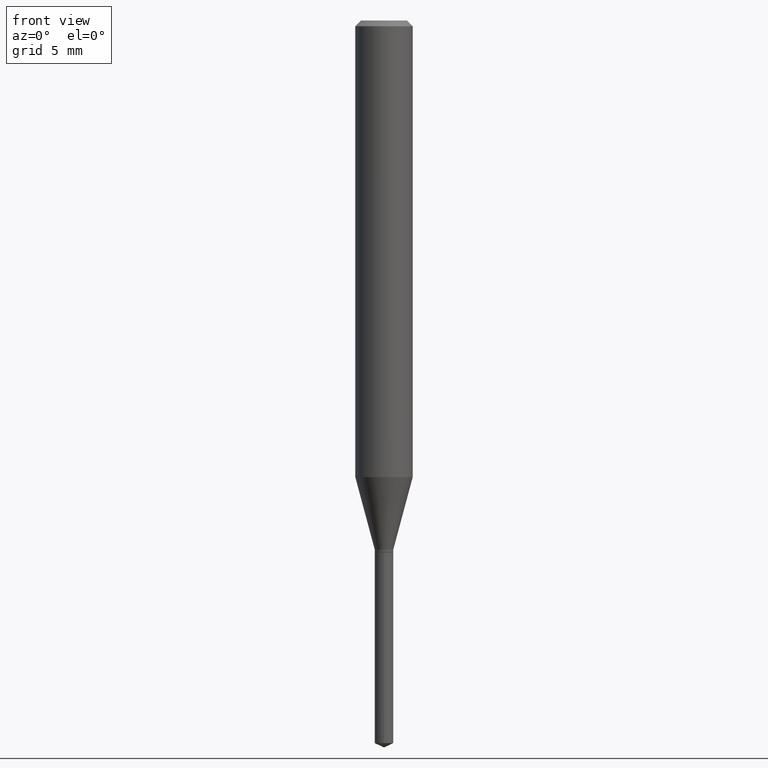
[diagram: clean part render]
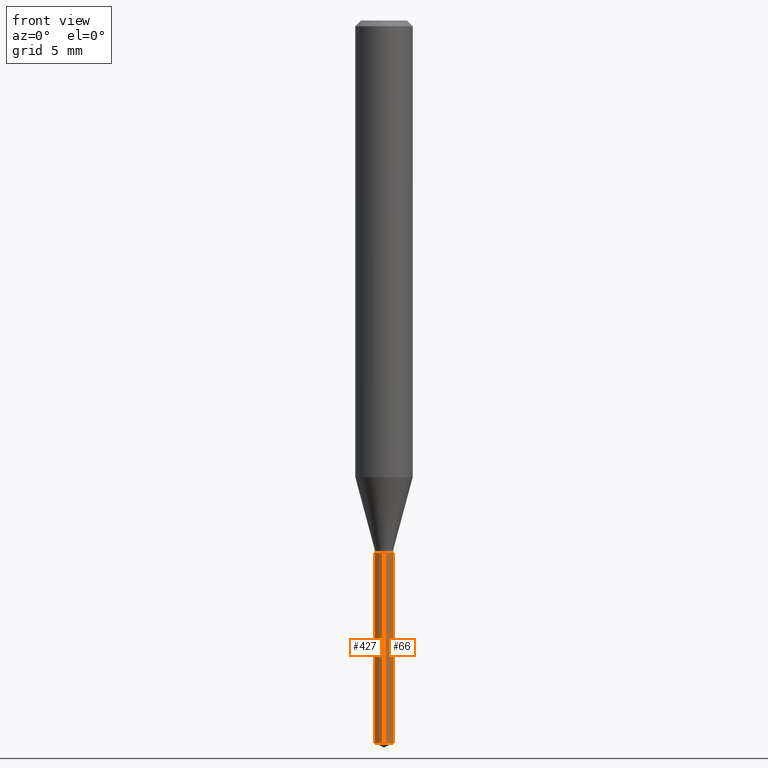
[diagram: same view with one multi-face feature highlighted, each face labeled with its STEP entity id]
A machine part, front view. The highlighted faces form ONE feature: a constant-radius fillet chain: 2 tangent blend faces with common blend radius 0.4851 mm. The faces share edges in the B-rep.
Their STEP definitions:
[1] entity #66 (Cylinder):
#21 = FACE_OUTER_BOUND ( 'NONE', #138, .T. ) ;
#51 = AXIS2_PLACEMENT_3D ( 'NONE', #162, #319, #282 ) ;
#66 = ADVANCED_FACE ( 'NONE', ( #21 ), #128, .T. ) ;
#67 = CARTESIAN_POINT ( 'NONE',  ( -1.333745871437809078E-16, -0.01910000000000382225, -1.094499999999999806 ) ) ;
#73 = EDGE_CURVE ( 'NONE', #410, #262, #165, .T. ) ;
#92 = CIRCLE ( 'NONE', #51, 0.01910000000000000239 ) ;
#95 = DIRECTION ( 'NONE',  ( -2.445470214571802116E-29, 3.491479321953280158E-15, 1.000000000000000000 ) ) ;
#112 = AXIS2_PLACEMENT_3D ( 'NONE', #324, #208, #400 ) ;
#122 = CARTESIAN_POINT ( 'NONE',  ( 1.357136625302058998E-16, 0.01909999999999617906, -1.094499999999999806 ) ) ;
#128 = CYLINDRICAL_SURFACE ( 'NONE', #112, 0.01910000000000000239 ) ;
#138 = EDGE_LOOP ( 'NONE', ( #460, #188, #145, #183 ) ) ;
#145 = ORIENTED_EDGE ( 'NONE', *, *, #444, .F. ) ;
#155 = EDGE_CURVE ( 'NONE', #410, #450, #92, .T. ) ;
#160 = DIRECTION ( 'NONE',  ( -2.445470214571802396E-29, 3.491479321953280158E-15, 1.000000000000000000 ) ) ;
#162 = CARTESIAN_POINT ( 'NONE',  ( 3.636885924104733214E-29, -5.192507643329431697E-15, -1.487193523729239519 ) ) ;
#164 = CIRCLE ( 'NONE', #335, 0.01910000000000000239 ) ;
#165 = LINE ( 'NONE', #245, #340 ) ;
#183 = ORIENTED_EDGE ( 'NONE', *, *, #73, .F. ) ;
#188 = ORIENTED_EDGE ( 'NONE', *, *, #390, .T. ) ;
#208 = DIRECTION ( 'NONE',  ( -2.445470214571802116E-29, 3.491479321953280158E-15, 1.000000000000000000 ) ) ;
#221 = VECTOR ( 'NONE', #286, 39.37007874015748143 ) ;
#241 = CARTESIAN_POINT ( 'NONE',  ( -1.333745871437713182E-16, -0.01910000000000519269, -1.487193523729239519 ) ) ;
#245 = CARTESIAN_POINT ( 'NONE',  ( -1.333745871437809078E-16, -0.01910000000000382225, -1.094499999999999806 ) ) ;
#262 = VERTEX_POINT ( 'NONE', #67 ) ;
#273 = VERTEX_POINT ( 'NONE', #441 ) ;
#282 = DIRECTION ( 'NONE',  ( -6.982962677686265133E-15, -1.000000000000000000, 0.000000000000000000 ) ) ;
#286 = DIRECTION ( 'NONE',  ( -2.445470214571802396E-29, 3.491479321953280158E-15, 1.000000000000000000 ) ) ;
#294 = CARTESIAN_POINT ( 'NONE',  ( 2.676565608369631794E-29, -3.821426325363822773E-15, -1.094499999999999806 ) ) ;
#319 = DIRECTION ( 'NONE',  ( -2.445470214571802116E-29, 3.491479321953280158E-15, 1.000000000000000000 ) ) ;
#324 = CARTESIAN_POINT ( 'NONE',  ( 2.676565608369631794E-29, -3.821426325363822773E-15, -1.094499999999999806 ) ) ;
#335 = AXIS2_PLACEMENT_3D ( 'NONE', #294, #95, #443 ) ;
#340 = VECTOR ( 'NONE', #160, 39.37007874015748143 ) ;
#386 = LINE ( 'NONE', #122, #221 ) ;
#390 = EDGE_CURVE ( 'NONE', #450, #273, #386, .T. ) ;
#400 = DIRECTION ( 'NONE',  ( -6.982962677686265133E-15, -1.000000000000000000, 0.000000000000000000 ) ) ;
#410 = VERTEX_POINT ( 'NONE', #241 ) ;
#441 = CARTESIAN_POINT ( 'NONE',  ( 1.357136625302155634E-16, 0.01909999999999617906, -1.094499999999999806 ) ) ;
#443 = DIRECTION ( 'NONE',  ( -6.982962677686265133E-15, -1.000000000000000000, 0.000000000000000000 ) ) ;
#444 = EDGE_CURVE ( 'NONE', #262, #273, #164, .T. ) ;
#450 = VERTEX_POINT ( 'NONE', #483 ) ;
#460 = ORIENTED_EDGE ( 'NONE', *, *, #155, .T. ) ;
#483 = CARTESIAN_POINT ( 'NONE',  ( 1.357136625302154648E-16, 0.01909999999999480516, -1.487193523729239519 ) ) ;
[2] entity #427 (Cylinder):
#10 = AXIS2_PLACEMENT_3D ( 'NONE', #411, #29, #378 ) ;
#29 = DIRECTION ( 'NONE',  ( -2.445470214571802116E-29, 3.491479321953280158E-15, 1.000000000000000000 ) ) ;
#38 = CIRCLE ( 'NONE', #10, 0.01910000000000000239 ) ;
#67 = CARTESIAN_POINT ( 'NONE',  ( -1.333745871437809078E-16, -0.01910000000000382225, -1.094499999999999806 ) ) ;
#72 = ORIENTED_EDGE ( 'NONE', *, *, #157, .F. ) ;
#73 = EDGE_CURVE ( 'NONE', #410, #262, #165, .T. ) ;
#84 = DIRECTION ( 'NONE',  ( -6.982962677686265133E-15, -1.000000000000000000, 0.000000000000000000 ) ) ;
#111 = ORIENTED_EDGE ( 'NONE', *, *, #223, .T. ) ;
#115 = ORIENTED_EDGE ( 'NONE', *, *, #73, .T. ) ;
#122 = CARTESIAN_POINT ( 'NONE',  ( 1.357136625302058998E-16, 0.01909999999999617906, -1.094499999999999806 ) ) ;
#125 = CARTESIAN_POINT ( 'NONE',  ( 2.676565608369631794E-29, -3.821426325363822773E-15, -1.094499999999999806 ) ) ;
#149 = CARTESIAN_POINT ( 'NONE',  ( 2.676565608369631794E-29, -3.821426325363822773E-15, -1.094499999999999806 ) ) ;
#157 = EDGE_CURVE ( 'NONE', #273, #262, #334, .T. ) ;
#160 = DIRECTION ( 'NONE',  ( -2.445470214571802396E-29, 3.491479321953280158E-15, 1.000000000000000000 ) ) ;
#165 = LINE ( 'NONE', #245, #340 ) ;
#221 = VECTOR ( 'NONE', #286, 39.37007874015748143 ) ;
#223 = EDGE_CURVE ( 'NONE', #450, #410, #38, .T. ) ;
#228 = FACE_OUTER_BOUND ( 'NONE', #304, .T. ) ;
#232 = ORIENTED_EDGE ( 'NONE', *, *, #390, .F. ) ;
#236 = AXIS2_PLACEMENT_3D ( 'NONE', #125, #422, #84 ) ;
#241 = CARTESIAN_POINT ( 'NONE',  ( -1.333745871437713182E-16, -0.01910000000000519269, -1.487193523729239519 ) ) ;
#245 = CARTESIAN_POINT ( 'NONE',  ( -1.333745871437809078E-16, -0.01910000000000382225, -1.094499999999999806 ) ) ;
#262 = VERTEX_POINT ( 'NONE', #67 ) ;
#273 = VERTEX_POINT ( 'NONE', #441 ) ;
#286 = DIRECTION ( 'NONE',  ( -2.445470214571802396E-29, 3.491479321953280158E-15, 1.000000000000000000 ) ) ;
#304 = EDGE_LOOP ( 'NONE', ( #232, #111, #115, #72 ) ) ;
#312 = DIRECTION ( 'NONE',  ( -2.445470214571802116E-29, 3.491479321953280158E-15, 1.000000000000000000 ) ) ;
#330 = DIRECTION ( 'NONE',  ( -6.982962677686265133E-15, -1.000000000000000000, 0.000000000000000000 ) ) ;
#334 = CIRCLE ( 'NONE', #236, 0.01910000000000000239 ) ;
#336 = AXIS2_PLACEMENT_3D ( 'NONE', #149, #312, #330 ) ;
#340 = VECTOR ( 'NONE', #160, 39.37007874015748143 ) ;
#350 = CYLINDRICAL_SURFACE ( 'NONE', #336, 0.01910000000000000239 ) ;
#378 = DIRECTION ( 'NONE',  ( -6.982962677686265133E-15, -1.000000000000000000, 0.000000000000000000 ) ) ;
#386 = LINE ( 'NONE', #122, #221 ) ;
#390 = EDGE_CURVE ( 'NONE', #450, #273, #386, .T. ) ;
#410 = VERTEX_POINT ( 'NONE', #241 ) ;
#411 = CARTESIAN_POINT ( 'NONE',  ( 3.636885924104733214E-29, -5.192507643329431697E-15, -1.487193523729239519 ) ) ;
#422 = DIRECTION ( 'NONE',  ( -2.445470214571802116E-29, 3.491479321953280158E-15, 1.000000000000000000 ) ) ;
#427 = ADVANCED_FACE ( 'NONE', ( #228 ), #350, .T. ) ;
#441 = CARTESIAN_POINT ( 'NONE',  ( 1.357136625302155634E-16, 0.01909999999999617906, -1.094499999999999806 ) ) ;
#450 = VERTEX_POINT ( 'NONE', #483 ) ;
#483 = CARTESIAN_POINT ( 'NONE',  ( 1.357136625302154648E-16, 0.01909999999999480516, -1.487193523729239519 ) ) ;